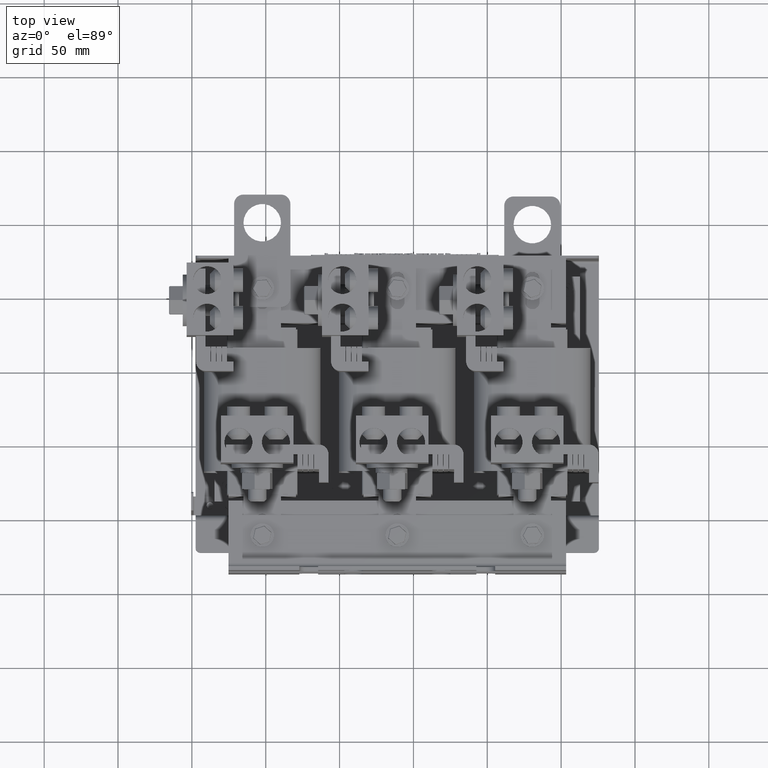
[diagram: clean part render]
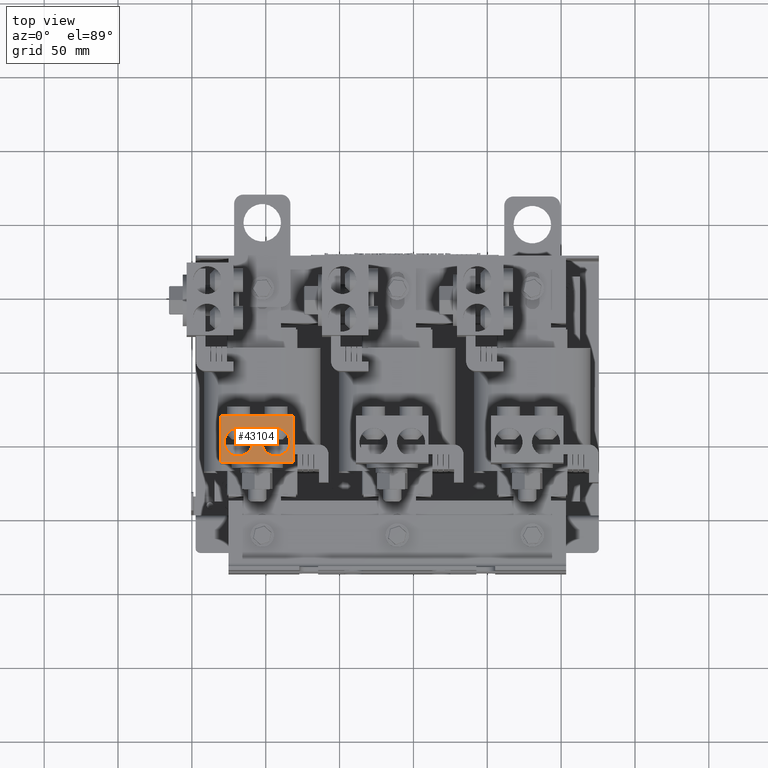
[diagram: same view with one face highlighted and labeled with its STEP entity id]
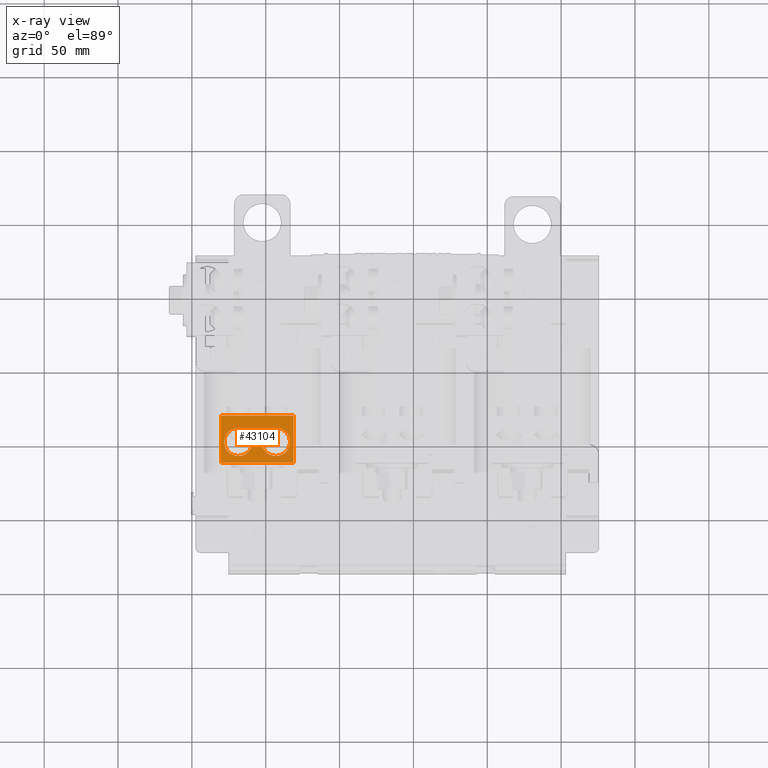
[diagram: x-ray of the same camera — body ghosted, the highlighted face saturated]
A machine part, top view. The second image highlights one B-rep face of the part: STEP entity #43104.
The next image is the same camera in x-ray: the body ghosted, the highlighted face saturated — about 0% of this face is hidden behind the body in this view.
In plain terms, the highlighted planar face has unit normal (0, -0, 1).
Its self-contained STEP definition (entity closure, byte-faithful):
#1905=FACE_BOUND('',#7474,.T.);
#1906=FACE_BOUND('',#7475,.T.);
#2990=PLANE('',#47248);
#5025=FACE_OUTER_BOUND('',#7473,.T.);
#7473=EDGE_LOOP('',(#37252,#37253,#37254,#37255));
#7474=EDGE_LOOP('',(#37256));
#7475=EDGE_LOOP('',(#37257));
#11384=LINE('',#72441,#15503);
#11389=LINE('',#72451,#15508);
#11391=LINE('',#72455,#15510);
#11392=LINE('',#72456,#15511);
#15503=VECTOR('',#56863,0.393700787401575);
#15508=VECTOR('',#56872,0.393700787401575);
#15510=VECTOR('',#56876,0.393700787401575);
#15511=VECTOR('',#56877,0.393700787401575);
#17606=CIRCLE('',#47232,0.375);
#17610=CIRCLE('',#47238,0.375);
#21116=VERTEX_POINT('',#72390);
#21122=VERTEX_POINT('',#72406);
#21133=VERTEX_POINT('',#72438);
#21134=VERTEX_POINT('',#72440);
#21137=VERTEX_POINT('',#72450);
#21138=VERTEX_POINT('',#72454);
#26643=EDGE_CURVE('',#21116,#21116,#17606,.T.);
#26651=EDGE_CURVE('',#21122,#21122,#17610,.T.);
#26669=EDGE_CURVE('',#21134,#21133,#11384,.T.);
#26674=EDGE_CURVE('',#21137,#21134,#11389,.T.);
#26676=EDGE_CURVE('',#21138,#21133,#11391,.T.);
#26677=EDGE_CURVE('',#21137,#21138,#11392,.T.);
#37252=ORIENTED_EDGE('',*,*,#26676,.F.);
#37253=ORIENTED_EDGE('',*,*,#26677,.F.);
#37254=ORIENTED_EDGE('',*,*,#26674,.T.);
#37255=ORIENTED_EDGE('',*,*,#26669,.T.);
#37256=ORIENTED_EDGE('',*,*,#26643,.T.);
#37257=ORIENTED_EDGE('',*,*,#26651,.T.);
#43104=ADVANCED_FACE('',(#5025,#1905,#1906),#2990,.T.);
#47232=AXIS2_PLACEMENT_3D('',#72391,#56817,#56818);
#47238=AXIS2_PLACEMENT_3D('',#72407,#56833,#56834);
#47248=AXIS2_PLACEMENT_3D('',#72453,#56874,#56875);
#56817=DIRECTION('center_axis',(-1.,-2.10192961094407E-16,0.));
#56818=DIRECTION('ref_axis',(0.,0.,1.));
#56833=DIRECTION('center_axis',(-1.,-2.10192961094407E-16,0.));
#56834=DIRECTION('ref_axis',(0.,0.,1.));
#56863=DIRECTION('',(7.49091064056646E-18,-1.,0.));
#56872=DIRECTION('',(0.,0.,1.));
#56874=DIRECTION('center_axis',(1.,2.10192961094407E-16,0.));
#56875=DIRECTION('ref_axis',(0.,0.,-1.));
#56876=DIRECTION('',(0.,0.,1.));
#56877=DIRECTION('',(2.10192961094407E-16,-1.,0.));
#72390=CARTESIAN_POINT('',(-3.08773459847684E-16,1.469,0.172));
#72391=CARTESIAN_POINT('Origin',(-3.38272956597738E-16,1.469,0.547));
#72406=CARTESIAN_POINT('',(-9.8580498753277E-17,0.469,0.172));
#72407=CARTESIAN_POINT('Origin',(-8.27910845836833E-17,0.469,0.546999999999999));
#72438=CARTESIAN_POINT('',(-3.92836573779544E-16,-1.63043423426145E-16,
1.25));
#72440=CARTESIAN_POINT('',(-4.07353958600961E-16,1.938,1.25));
#72441=CARTESIAN_POINT('',(-3.92836573779544E-16,-1.63043423426145E-16,
1.25));
#72450=CARTESIAN_POINT('',(-4.07353958600961E-16,1.938,0.));
#72451=CARTESIAN_POINT('',(-4.07353958600961E-16,1.938,0.));
#72453=CARTESIAN_POINT('Origin',(-4.07353958600961E-16,1.938,0.));
#72454=CARTESIAN_POINT('',(0.,0.,0.));
#72455=CARTESIAN_POINT('',(0.,0.,0.));
#72456=CARTESIAN_POINT('',(-4.07353958600961E-16,1.938,0.));